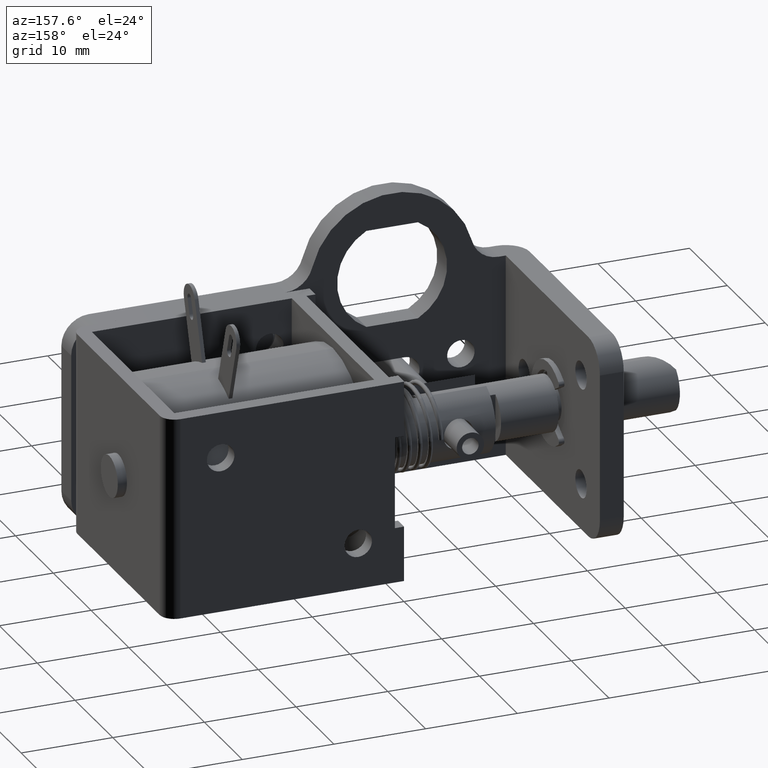
[diagram: clean part render]
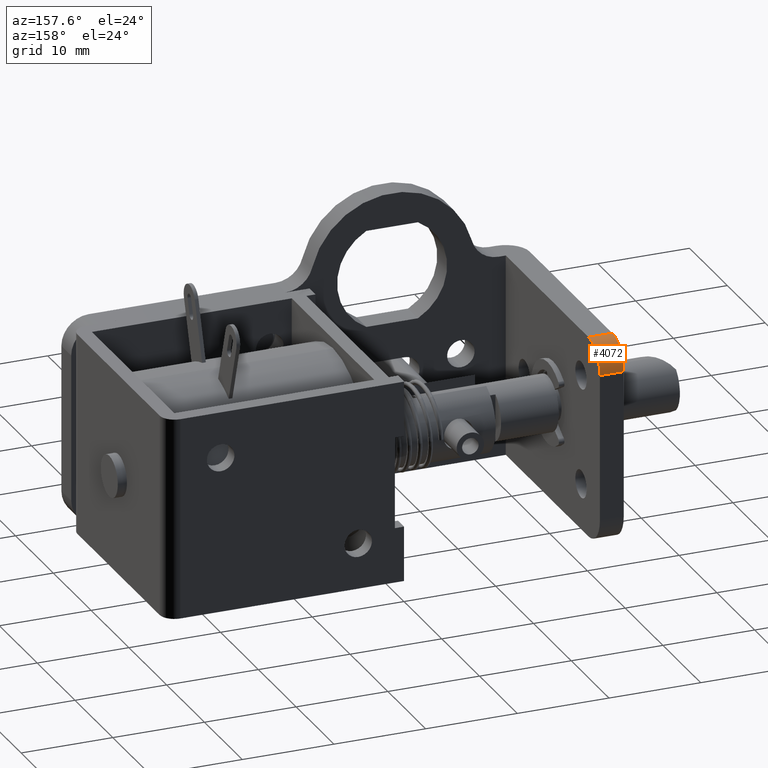
[diagram: same view with one face highlighted and labeled with its STEP entity id]
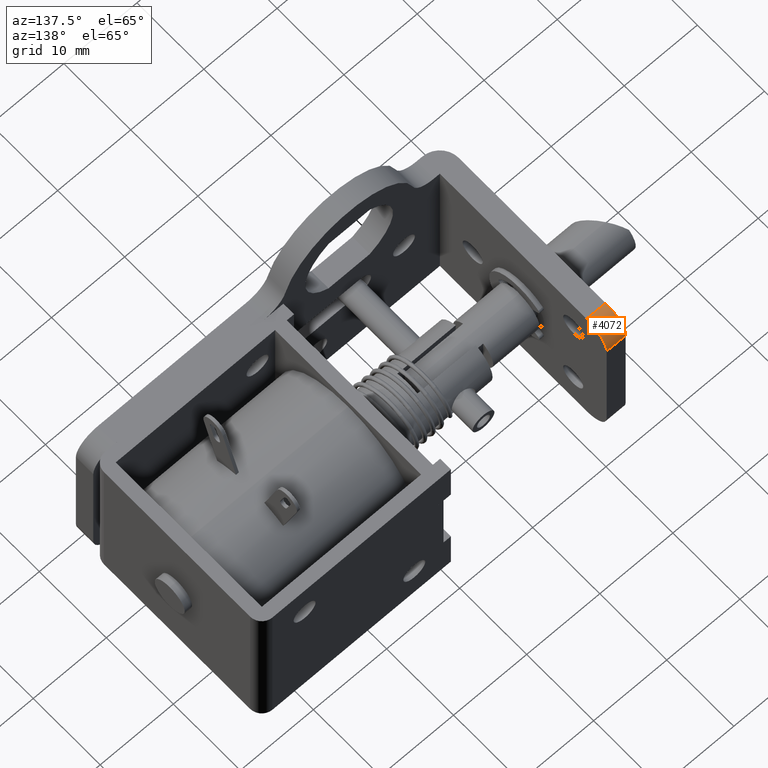
[diagram: same view with one face highlighted and labeled with its STEP entity id]
A machine part, auxiliary view. The second image highlights one B-rep face of the part: STEP entity #4072.
A second angle (auxiliary view) of the same face is appended — the face is thin or edge-on in the first view.
In plain terms, the highlighted cylindrical surface (edge-blend (fillet) strip) has radius 3 mm, axis along (-1, 0, 0).
Its self-contained STEP definition (entity closure, byte-faithful):
#404 = DIRECTION ( 'NONE',  ( 0.0000000000000000000, 0.0000000000000000000, 1.000000000000000000 ) ) ;
#437 = AXIS2_PLACEMENT_3D ( 'NONE', #1829, #7489, #2641 ) ;
#813 = AXIS2_PLACEMENT_3D ( 'NONE', #5233, #3612, #404 ) ;
#963 = CARTESIAN_POINT ( 'NONE',  ( 985.0000079999999800, 27.50000000000000000, -3.000000261799304900 ) ) ;
#1829 = CARTESIAN_POINT ( 'NONE',  ( -14.99999200000002000, 24.50000000000000000, -3.000000000000035100 ) ) ;
#2641 = DIRECTION ( 'NONE',  ( 0.0000000000000000000, 0.0000000000000000000, 1.000000000000000000 ) ) ;
#2742 = FACE_OUTER_BOUND ( 'NONE', #3202, .T. ) ;
#3029 = EDGE_CURVE ( 'NONE', #4174, #8892, #4640, .T. ) ;
#3202 = EDGE_LOOP ( 'NONE', ( #5278, #4016, #6419, #7131 ) ) ;
#3212 = LINE ( 'NONE', #963, #9950 ) ;
#3387 = DIRECTION ( 'NONE',  ( -1.000000000000000000, 0.0000000000000000000, 0.0000000000000000000 ) ) ;
#3437 = CARTESIAN_POINT ( 'NONE',  ( 985.0000079999999800, 24.50000015707964700, -3.685940441755519700E-014 ) ) ;
#3507 = CIRCLE ( 'NONE', #4293, 3.000000000000000000 ) ;
#3612 = DIRECTION ( 'NONE',  ( -1.000000000000000000, 0.0000000000000000000, 0.0000000000000000000 ) ) ;
#4016 = ORIENTED_EDGE ( 'NONE', *, *, #3029, .F. ) ;
#4072 = ADVANCED_FACE ( 'NONE', ( #2742 ), #6770, .T. ) ;
#4174 = VERTEX_POINT ( 'NONE', #4558 ) ;
#4293 = AXIS2_PLACEMENT_3D ( 'NONE', #4425, #10146, #5238 ) ;
#4370 = CARTESIAN_POINT ( 'NONE',  ( -14.99999200000002000, 24.50000015707964700, -3.685940441755519700E-014 ) ) ;
#4425 = CARTESIAN_POINT ( 'NONE',  ( -12.39999200000008100, 24.50000000000000000, -3.000000000000035100 ) ) ;
#4558 = CARTESIAN_POINT ( 'NONE',  ( -12.39999200000008100, 24.50000015707964700, -3.685940441755519700E-014 ) ) ;
#4640 = LINE ( 'NONE', #3437, #8744 ) ;
#5233 = CARTESIAN_POINT ( 'NONE',  ( 985.0000079999999800, 24.50000000000000000, -3.000000000000035100 ) ) ;
#5238 = DIRECTION ( 'NONE',  ( 0.0000000000000000000, 0.0000000000000000000, 1.000000000000000000 ) ) ;
#5278 = ORIENTED_EDGE ( 'NONE', *, *, #8276, .F. ) ;
#5398 = CARTESIAN_POINT ( 'NONE',  ( -14.99999200000002000, 27.50000000000000000, -3.000000261799304900 ) ) ;
#6419 = ORIENTED_EDGE ( 'NONE', *, *, #6423, .T. ) ;
#6423 = EDGE_CURVE ( 'NONE', #4174, #8001, #3507, .T. ) ;
#6770 = CYLINDRICAL_SURFACE ( 'NONE', #813, 3.000000000000000000 ) ;
#7061 = CARTESIAN_POINT ( 'NONE',  ( -12.39999200000008100, 27.50000000000000000, -3.000000261799304900 ) ) ;
#7131 = ORIENTED_EDGE ( 'NONE', *, *, #10507, .T. ) ;
#7489 = DIRECTION ( 'NONE',  ( -1.000000000000000000, 0.0000000000000000000, 0.0000000000000000000 ) ) ;
#8001 = VERTEX_POINT ( 'NONE', #7061 ) ;
#8276 = EDGE_CURVE ( 'NONE', #8892, #9037, #10343, .T. ) ;
#8744 = VECTOR ( 'NONE', #9141, 1000.000000000000000 ) ;
#8892 = VERTEX_POINT ( 'NONE', #4370 ) ;
#9037 = VERTEX_POINT ( 'NONE', #5398 ) ;
#9141 = DIRECTION ( 'NONE',  ( -1.000000000000000000, 0.0000000000000000000, 0.0000000000000000000 ) ) ;
#9950 = VECTOR ( 'NONE', #3387, 1000.000000000000000 ) ;
#10146 = DIRECTION ( 'NONE',  ( -1.000000000000000000, 0.0000000000000000000, 0.0000000000000000000 ) ) ;
#10343 = CIRCLE ( 'NONE', #437, 3.000000000000000000 ) ;
#10507 = EDGE_CURVE ( 'NONE', #8001, #9037, #3212, .T. ) ;